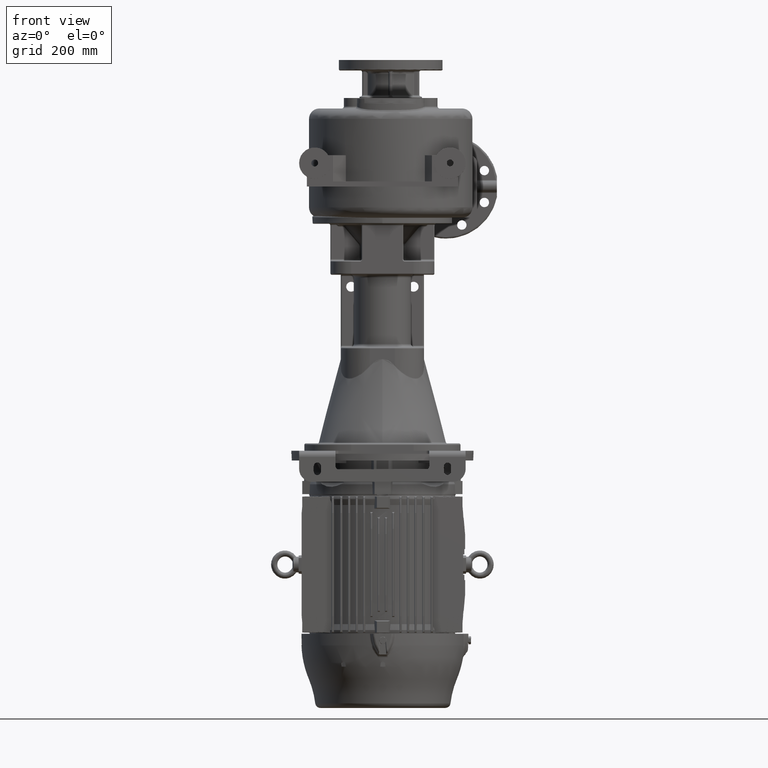
[diagram: clean part render]
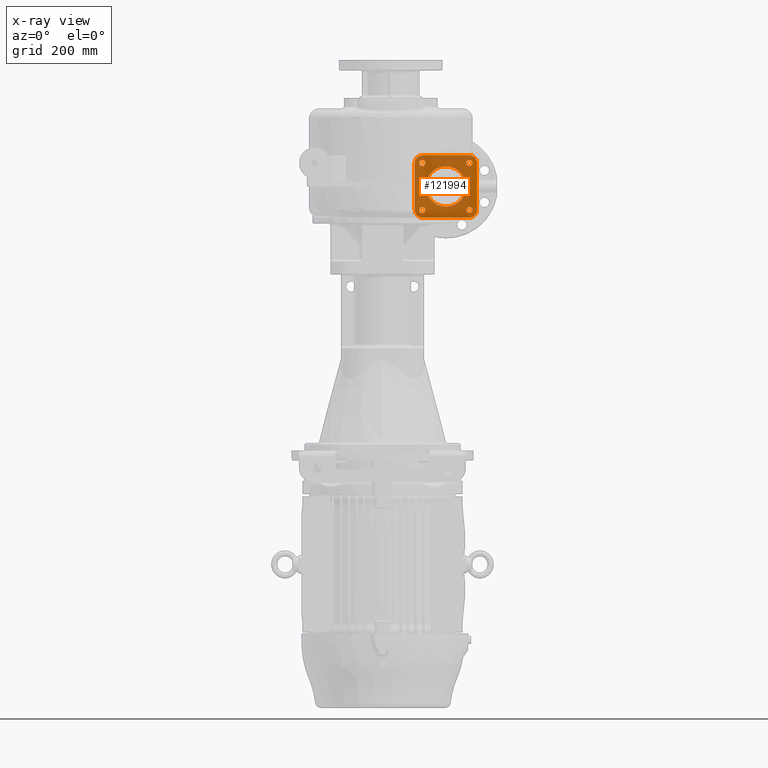
[diagram: x-ray — body ghosted, one internal face saturated and labeled with its STEP entity id]
A machine part, front view, then the same camera in x-ray: the body is ghosted and one INTERNAL B-rep face — a face not visible from any outside direction — is saturated and labeled: STEP entity #121994.
In plain terms, the highlighted planar face has unit normal (0, 1, 0).
Its self-contained STEP definition (entity closure, byte-faithful):
#118407=DIRECTION('',(0.E0,0.E0,1.E0));
#118408=VECTOR('',#118407,9.E1);
#118409=CARTESIAN_POINT('',(6.2E1,3.85E2,-9.E1));
#118410=LINE('',#118409,#118408);
#118449=CARTESIAN_POINT('',(1.22E2,3.85E2,-4.5E1));
#118450=DIRECTION('',(0.E0,-1.E0,0.E0));
#118451=DIRECTION('',(0.E0,0.E0,-1.E0));
#118452=AXIS2_PLACEMENT_3D('',#118449,#118450,#118451);
#118454=CARTESIAN_POINT('',(1.22E2,3.85E2,-4.5E1));
#118455=DIRECTION('',(0.E0,-1.E0,0.E0));
#118456=DIRECTION('',(0.E0,0.E0,1.E0));
#118457=AXIS2_PLACEMENT_3D('',#118454,#118455,#118456);
#118459=CARTESIAN_POINT('',(7.674516600406E1,3.85E2,-9.025483399594E1));
#118460=DIRECTION('',(0.E0,1.E0,0.E0));
#118461=DIRECTION('',(1.E0,0.E0,0.E0));
#118462=AXIS2_PLACEMENT_3D('',#118459,#118460,#118461);
#118464=CARTESIAN_POINT('',(7.674516600406E1,3.85E2,-9.025483399594E1));
#118465=DIRECTION('',(0.E0,1.E0,0.E0));
#118466=DIRECTION('',(-1.E0,0.E0,0.E0));
#118467=AXIS2_PLACEMENT_3D('',#118464,#118465,#118466);
#118469=CARTESIAN_POINT('',(7.674516600406E1,3.85E2,2.548339959391E-1));
#118470=DIRECTION('',(0.E0,1.E0,0.E0));
#118471=DIRECTION('',(0.E0,0.E0,-1.E0));
#118472=AXIS2_PLACEMENT_3D('',#118469,#118470,#118471);
#118474=CARTESIAN_POINT('',(7.674516600406E1,3.85E2,2.548339959391E-1));
#118475=DIRECTION('',(0.E0,1.E0,0.E0));
#118476=DIRECTION('',(0.E0,0.E0,1.E0));
#118477=AXIS2_PLACEMENT_3D('',#118474,#118475,#118476);
#118479=CARTESIAN_POINT('',(1.672548339959E2,3.85E2,2.548339959391E-1));
#118480=DIRECTION('',(0.E0,1.E0,0.E0));
#118481=DIRECTION('',(-1.E0,0.E0,0.E0));
#118482=AXIS2_PLACEMENT_3D('',#118479,#118480,#118481);
#118484=CARTESIAN_POINT('',(1.672548339959E2,3.85E2,2.548339959391E-1));
#118485=DIRECTION('',(0.E0,1.E0,0.E0));
#118486=DIRECTION('',(1.E0,0.E0,0.E0));
#118487=AXIS2_PLACEMENT_3D('',#118484,#118485,#118486);
#118489=CARTESIAN_POINT('',(1.672548339959E2,3.85E2,-9.025483399594E1));
#118490=DIRECTION('',(0.E0,1.E0,0.E0));
#118491=DIRECTION('',(0.E0,0.E0,1.E0));
#118492=AXIS2_PLACEMENT_3D('',#118489,#118490,#118491);
#118494=CARTESIAN_POINT('',(1.672548339959E2,3.85E2,-9.025483399594E1));
#118495=DIRECTION('',(0.E0,1.E0,0.E0));
#118496=DIRECTION('',(0.E0,0.E0,-1.E0));
#118497=AXIS2_PLACEMENT_3D('',#118494,#118495,#118496);
#118499=DIRECTION('',(-1.E0,0.E0,0.E0));
#118500=VECTOR('',#118499,9.E1);
#118501=CARTESIAN_POINT('',(1.67E2,3.85E2,-1.05E2));
#118502=LINE('',#118501,#118500);
#118515=CARTESIAN_POINT('',(1.67E2,3.85E2,-9.E1));
#118516=DIRECTION('',(0.E0,-1.E0,0.E0));
#118517=DIRECTION('',(0.E0,0.E0,-1.E0));
#118518=AXIS2_PLACEMENT_3D('',#118515,#118516,#118517);
#118525=DIRECTION('',(0.E0,0.E0,-1.E0));
#118526=VECTOR('',#118525,9.E1);
#118527=CARTESIAN_POINT('',(1.82E2,3.85E2,0.E0));
#118528=LINE('',#118527,#118526);
#118563=CARTESIAN_POINT('',(1.67E2,3.85E2,0.E0));
#118564=DIRECTION('',(0.E0,-1.E0,0.E0));
#118565=DIRECTION('',(1.E0,0.E0,0.E0));
#118566=AXIS2_PLACEMENT_3D('',#118563,#118564,#118565);
#118573=DIRECTION('',(1.E0,0.E0,0.E0));
#118574=VECTOR('',#118573,9.E1);
#118575=CARTESIAN_POINT('',(7.7E1,3.85E2,1.5E1));
#118576=LINE('',#118575,#118574);
#118589=CARTESIAN_POINT('',(7.7E1,3.85E2,0.E0));
#118590=DIRECTION('',(0.E0,-1.E0,0.E0));
#118591=DIRECTION('',(0.E0,0.E0,1.E0));
#118592=AXIS2_PLACEMENT_3D('',#118589,#118590,#118591);
#119582=CARTESIAN_POINT('',(7.7E1,3.85E2,-9.E1));
#119583=DIRECTION('',(0.E0,-1.E0,0.E0));
#119584=DIRECTION('',(-1.E0,0.E0,1.610563534390E-14));
#119585=AXIS2_PLACEMENT_3D('',#119582,#119583,#119584);
#121728=CARTESIAN_POINT('',(1.67E2,3.85E2,-1.05E2));
#121729=CARTESIAN_POINT('',(7.7E1,3.85E2,-1.05E2));
#121730=VERTEX_POINT('',#121728);
#121731=VERTEX_POINT('',#121729);
#121732=CARTESIAN_POINT('',(6.2E1,3.85E2,-9.E1));
#121733=CARTESIAN_POINT('',(6.2E1,3.85E2,-7.105427357601E-14));
#121734=VERTEX_POINT('',#121732);
#121735=VERTEX_POINT('',#121733);
#121736=CARTESIAN_POINT('',(7.7E1,3.85E2,1.5E1));
#121737=CARTESIAN_POINT('',(1.67E2,3.85E2,1.5E1));
#121738=VERTEX_POINT('',#121736);
#121739=VERTEX_POINT('',#121737);
#121740=CARTESIAN_POINT('',(1.82E2,3.85E2,0.E0));
#121741=CARTESIAN_POINT('',(1.82E2,3.85E2,-9.E1));
#121742=VERTEX_POINT('',#121740);
#121743=VERTEX_POINT('',#121741);
#121784=CARTESIAN_POINT('',(1.22E2,3.85E2,-8.35E1));
#121785=CARTESIAN_POINT('',(1.22E2,3.85E2,-6.5E0));
#121786=VERTEX_POINT('',#121784);
#121787=VERTEX_POINT('',#121785);
#121852=CARTESIAN_POINT('',(8.249516600406E1,3.85E2,-9.025483399594E1));
#121853=CARTESIAN_POINT('',(7.099516600406E1,3.85E2,-9.025483399594E1));
#121854=VERTEX_POINT('',#121852);
#121855=VERTEX_POINT('',#121853);
#121860=CARTESIAN_POINT('',(7.674516600406E1,3.85E2,-5.495166004061E0));
#121861=CARTESIAN_POINT('',(7.674516600406E1,3.85E2,6.004833995939E0));
#121862=VERTEX_POINT('',#121860);
#121863=VERTEX_POINT('',#121861);
#121868=CARTESIAN_POINT('',(1.615048339959E2,3.85E2,2.548339959391E-1));
#121869=CARTESIAN_POINT('',(1.730048339959E2,3.85E2,2.548339959391E-1));
#121870=VERTEX_POINT('',#121868);
#121871=VERTEX_POINT('',#121869);
#121876=CARTESIAN_POINT('',(1.672548339959E2,3.85E2,-8.450483399594E1));
#121877=CARTESIAN_POINT('',(1.672548339959E2,3.85E2,-9.600483399594E1));
#121878=VERTEX_POINT('',#121876);
#121879=VERTEX_POINT('',#121877);
#121942=CARTESIAN_POINT('',(1.22E2,3.85E2,-4.5E1));
#121943=DIRECTION('',(0.E0,1.E0,0.E0));
#121944=DIRECTION('',(1.E0,0.E0,0.E0));
#121945=AXIS2_PLACEMENT_3D('',#121942,#121943,#121944);
#121946=PLANE('',#121945);
#121948=ORIENTED_EDGE('',*,*,#121947,.T.);
#121950=ORIENTED_EDGE('',*,*,#121949,.F.);
#121951=ORIENTED_EDGE('',*,*,#121920,.T.);
#121953=ORIENTED_EDGE('',*,*,#121952,.F.);
#121955=ORIENTED_EDGE('',*,*,#121954,.T.);
#121957=ORIENTED_EDGE('',*,*,#121956,.F.);
#121959=ORIENTED_EDGE('',*,*,#121958,.T.);
#121961=ORIENTED_EDGE('',*,*,#121960,.F.);
#121962=EDGE_LOOP('',(#121948,#121950,#121951,#121953,#121955,#121957,#121959,
#121961));
#121963=FACE_OUTER_BOUND('',#121962,.F.);
#121965=ORIENTED_EDGE('',*,*,#121964,.T.);
#121967=ORIENTED_EDGE('',*,*,#121966,.T.);
#121968=EDGE_LOOP('',(#121965,#121967));
#121969=FACE_BOUND('',#121968,.F.);
#121971=ORIENTED_EDGE('',*,*,#121970,.F.);
#121973=ORIENTED_EDGE('',*,*,#121972,.F.);
#121974=EDGE_LOOP('',(#121971,#121973));
#121975=FACE_BOUND('',#121974,.F.);
#121977=ORIENTED_EDGE('',*,*,#121976,.F.);
#121979=ORIENTED_EDGE('',*,*,#121978,.F.);
#121980=EDGE_LOOP('',(#121977,#121979));
#121981=FACE_BOUND('',#121980,.F.);
#121983=ORIENTED_EDGE('',*,*,#121982,.F.);
#121985=ORIENTED_EDGE('',*,*,#121984,.F.);
#121986=EDGE_LOOP('',(#121983,#121985));
#121987=FACE_BOUND('',#121986,.F.);
#121989=ORIENTED_EDGE('',*,*,#121988,.F.);
#121991=ORIENTED_EDGE('',*,*,#121990,.F.);
#121992=EDGE_LOOP('',(#121989,#121991));
#121993=FACE_BOUND('',#121992,.F.);
#121994=ADVANCED_FACE('',(#121963,#121969,#121975,#121981,#121987,#121993),
#121946,.F.);
#118453=CIRCLE('',#118452,3.85E1);
#118458=CIRCLE('',#118457,3.85E1);
#118463=CIRCLE('',#118462,5.75E0);
#118468=CIRCLE('',#118467,5.75E0);
#118473=CIRCLE('',#118472,5.75E0);
#118478=CIRCLE('',#118477,5.75E0);
#118483=CIRCLE('',#118482,5.75E0);
#118488=CIRCLE('',#118487,5.75E0);
#118493=CIRCLE('',#118492,5.75E0);
#118498=CIRCLE('',#118497,5.75E0);
#118519=CIRCLE('',#118518,1.5E1);
#118567=CIRCLE('',#118566,1.5E1);
#118593=CIRCLE('',#118592,1.5E1);
#119586=CIRCLE('',#119585,1.5E1);
#121920=EDGE_CURVE('',#121734,#121735,#118410,.T.);
#121947=EDGE_CURVE('',#121730,#121731,#118502,.T.);
#121949=EDGE_CURVE('',#121734,#121731,#119586,.T.);
#121952=EDGE_CURVE('',#121738,#121735,#118593,.T.);
#121954=EDGE_CURVE('',#121738,#121739,#118576,.T.);
#121956=EDGE_CURVE('',#121742,#121739,#118567,.T.);
#121958=EDGE_CURVE('',#121742,#121743,#118528,.T.);
#121960=EDGE_CURVE('',#121730,#121743,#118519,.T.);
#121964=EDGE_CURVE('',#121786,#121787,#118453,.T.);
#121966=EDGE_CURVE('',#121787,#121786,#118458,.T.);
#121970=EDGE_CURVE('',#121854,#121855,#118463,.T.);
#121972=EDGE_CURVE('',#121855,#121854,#118468,.T.);
#121976=EDGE_CURVE('',#121862,#121863,#118473,.T.);
#121978=EDGE_CURVE('',#121863,#121862,#118478,.T.);
#121982=EDGE_CURVE('',#121870,#121871,#118483,.T.);
#121984=EDGE_CURVE('',#121871,#121870,#118488,.T.);
#121988=EDGE_CURVE('',#121878,#121879,#118493,.T.);
#121990=EDGE_CURVE('',#121879,#121878,#118498,.T.);